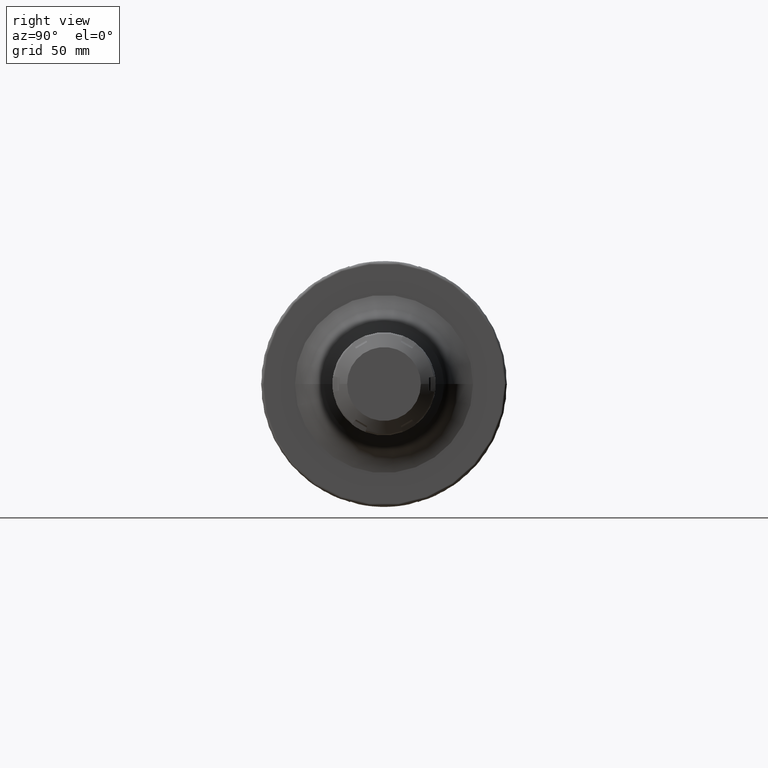
[diagram: clean part render]
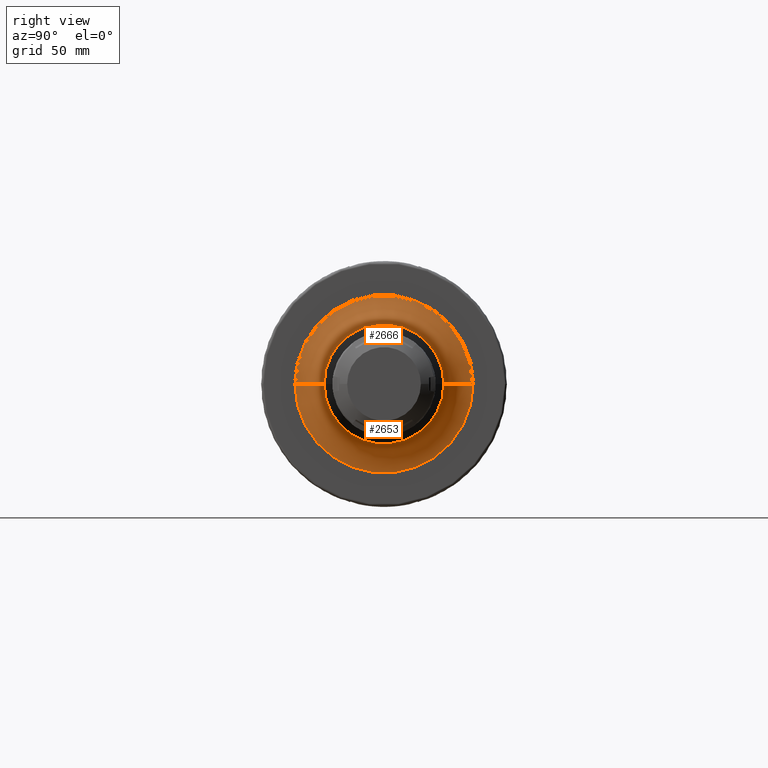
[diagram: same view with one multi-face feature highlighted, each face labeled with its STEP entity id]
A machine part, right view. The highlighted faces form ONE feature: a constant-radius fillet chain: 2 tangent blend faces with common blend radius 12 mm. The faces share edges in the B-rep.
Their STEP definitions:
[1] entity #2653 (Torus):
#834=CARTESIAN_POINT('',(3.8E1,0.E0,0.E0));
#835=DIRECTION('',(1.E0,0.E0,0.E0));
#836=DIRECTION('',(0.E0,-1.E0,0.E0));
#837=AXIS2_PLACEMENT_3D('',#834,#835,#836);
#844=CARTESIAN_POINT('',(5.E1,-3.622816150469E1,6.422029574793E-12));
#845=DIRECTION('',(0.E0,-1.772670552014E-13,-1.E0));
#846=DIRECTION('',(-1.E0,1.480297366167E-14,0.E0));
#847=AXIS2_PLACEMENT_3D('',#844,#845,#846);
#849=CARTESIAN_POINT('',(5.E1,3.622816150469E1,-6.426248422287E-12));
#850=DIRECTION('',(0.E0,1.773824143125E-13,1.E0));
#851=DIRECTION('',(-1.E0,-1.480297366167E-14,0.E0));
#852=AXIS2_PLACEMENT_3D('',#849,#850,#851);
#859=CARTESIAN_POINT('',(4.820833333333E1,0.E0,0.E0));
#860=DIRECTION('',(1.E0,0.E0,0.E0));
#861=DIRECTION('',(0.E0,-1.E0,0.E0));
#862=AXIS2_PLACEMENT_3D('',#859,#860,#861);
#1503=CARTESIAN_POINT('',(3.8E1,-3.622816150469E1,-2.126174933981E-13));
#1504=CARTESIAN_POINT('',(3.8E1,3.622816150469E1,2.081808231955E-13));
#1505=VERTEX_POINT('',#1503);
#1506=VERTEX_POINT('',#1504);
#1507=CARTESIAN_POINT('',(4.820833333333E1,-2.436266823405E1,0.E0));
#1508=CARTESIAN_POINT('',(4.820833333333E1,2.436266823405E1,0.E0));
#1509=VERTEX_POINT('',#1507);
#1510=VERTEX_POINT('',#1508);
#2639=CARTESIAN_POINT('',(5.E1,0.E0,0.E0));
#2640=DIRECTION('',(1.E0,0.E0,0.E0));
#2641=DIRECTION('',(0.E0,-9.999761708853E-1,6.903452871557E-3));
#2642=AXIS2_PLACEMENT_3D('',#2639,#2640,#2641);
#2643=TOROIDAL_SURFACE('',#2642,3.622816150469E1,1.2E1);
#2644=ORIENTED_EDGE('',*,*,#2632,.F.);
#2646=ORIENTED_EDGE('',*,*,#2645,.T.);
#2648=ORIENTED_EDGE('',*,*,#2647,.T.);
#2650=ORIENTED_EDGE('',*,*,#2649,.F.);
#2651=EDGE_LOOP('',(#2644,#2646,#2648,#2650));
#2652=FACE_OUTER_BOUND('',#2651,.F.);
#2653=ADVANCED_FACE('',(#2652),#2643,.F.);
#838=CIRCLE('',#837,3.622816150469E1);
#848=CIRCLE('',#847,1.2E1);
#853=CIRCLE('',#852,1.2E1);
#863=CIRCLE('',#862,2.436266823405E1);
#2632=EDGE_CURVE('',#1505,#1506,#838,.T.);
#2645=EDGE_CURVE('',#1505,#1509,#848,.T.);
#2647=EDGE_CURVE('',#1509,#1510,#863,.T.);
#2649=EDGE_CURVE('',#1506,#1510,#853,.T.);
[2] entity #2666 (Torus):
#839=CARTESIAN_POINT('',(3.8E1,0.E0,0.E0));
#840=DIRECTION('',(1.E0,0.E0,0.E0));
#841=DIRECTION('',(0.E0,1.E0,0.E0));
#842=AXIS2_PLACEMENT_3D('',#839,#840,#841);
#844=CARTESIAN_POINT('',(5.E1,-3.622816150469E1,6.422029574793E-12));
#845=DIRECTION('',(0.E0,-1.772670552014E-13,-1.E0));
#846=DIRECTION('',(-1.E0,1.480297366167E-14,0.E0));
#847=AXIS2_PLACEMENT_3D('',#844,#845,#846);
#849=CARTESIAN_POINT('',(5.E1,3.622816150469E1,-6.426248422287E-12));
#850=DIRECTION('',(0.E0,1.773824143125E-13,1.E0));
#851=DIRECTION('',(-1.E0,-1.480297366167E-14,0.E0));
#852=AXIS2_PLACEMENT_3D('',#849,#850,#851);
#854=CARTESIAN_POINT('',(4.820833333333E1,0.E0,0.E0));
#855=DIRECTION('',(1.E0,0.E0,0.E0));
#856=DIRECTION('',(0.E0,1.E0,0.E0));
#857=AXIS2_PLACEMENT_3D('',#854,#855,#856);
#1503=CARTESIAN_POINT('',(3.8E1,-3.622816150469E1,-2.126174933981E-13));
#1504=CARTESIAN_POINT('',(3.8E1,3.622816150469E1,2.081808231955E-13));
#1505=VERTEX_POINT('',#1503);
#1506=VERTEX_POINT('',#1504);
#1507=CARTESIAN_POINT('',(4.820833333333E1,-2.436266823405E1,0.E0));
#1508=CARTESIAN_POINT('',(4.820833333333E1,2.436266823405E1,0.E0));
#1509=VERTEX_POINT('',#1507);
#1510=VERTEX_POINT('',#1508);
#2654=CARTESIAN_POINT('',(5.E1,0.E0,0.E0));
#2655=DIRECTION('',(1.E0,0.E0,0.E0));
#2656=DIRECTION('',(0.E0,9.999761708853E-1,-6.903452871557E-3));
#2657=AXIS2_PLACEMENT_3D('',#2654,#2655,#2656);
#2658=TOROIDAL_SURFACE('',#2657,3.622816150469E1,1.2E1);
#2659=ORIENTED_EDGE('',*,*,#2634,.F.);
#2660=ORIENTED_EDGE('',*,*,#2649,.T.);
#2662=ORIENTED_EDGE('',*,*,#2661,.T.);
#2663=ORIENTED_EDGE('',*,*,#2645,.F.);
#2664=EDGE_LOOP('',(#2659,#2660,#2662,#2663));
#2665=FACE_OUTER_BOUND('',#2664,.F.);
#2666=ADVANCED_FACE('',(#2665),#2658,.F.);
#843=CIRCLE('',#842,3.622816150469E1);
#848=CIRCLE('',#847,1.2E1);
#853=CIRCLE('',#852,1.2E1);
#858=CIRCLE('',#857,2.436266823405E1);
#2634=EDGE_CURVE('',#1506,#1505,#843,.T.);
#2645=EDGE_CURVE('',#1505,#1509,#848,.T.);
#2649=EDGE_CURVE('',#1506,#1510,#853,.T.);
#2661=EDGE_CURVE('',#1510,#1509,#858,.T.);